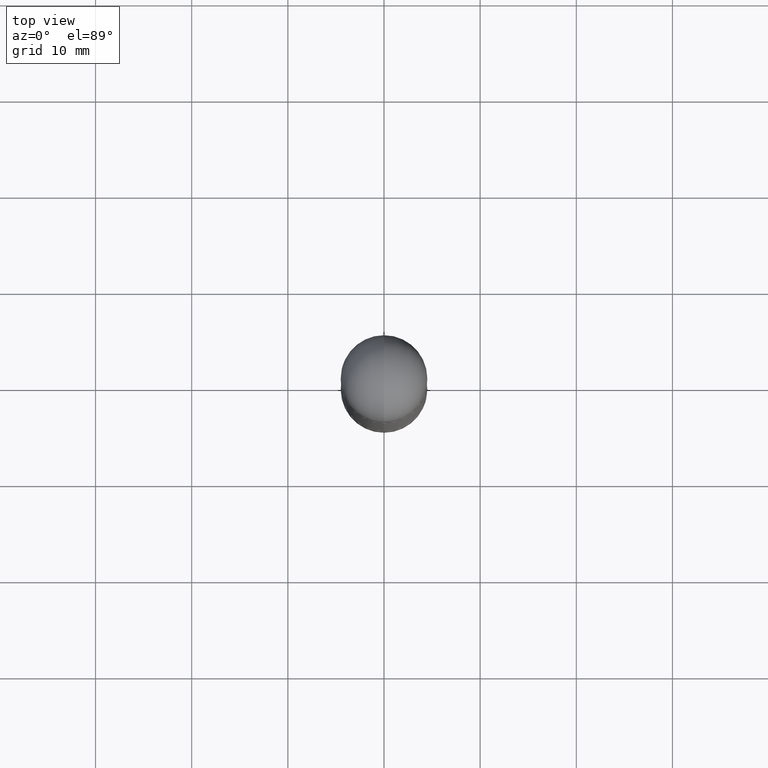
[diagram: clean part render]
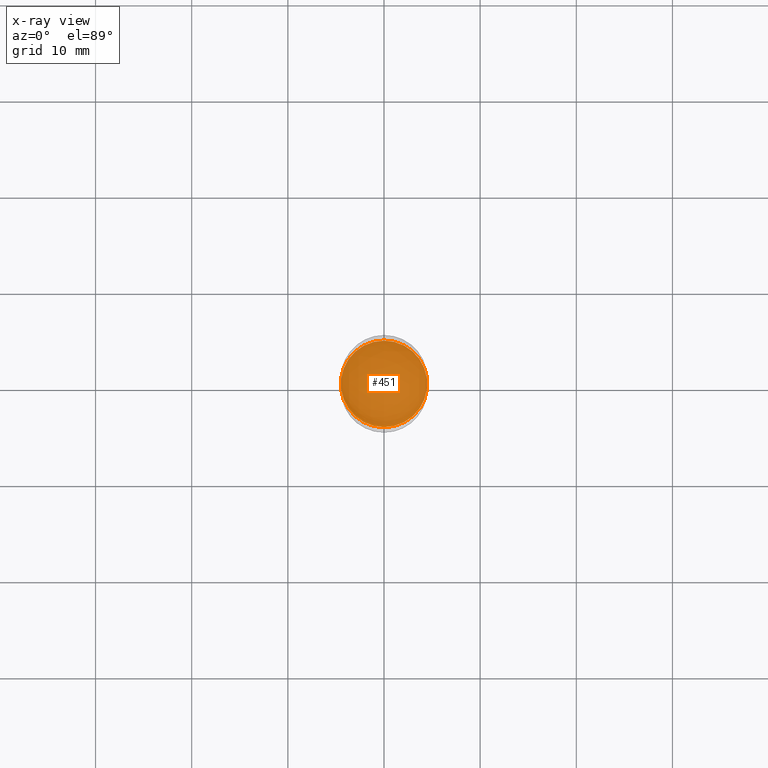
[diagram: x-ray — body ghosted, one internal face saturated and labeled with its STEP entity id]
A machine part, top view, then the same camera in x-ray: the body is ghosted and one INTERNAL B-rep face — a face not visible from any outside direction — is saturated and labeled: STEP entity #451.
In plain terms, the highlighted planar face has unit normal (0, 0, 1).
Its self-contained STEP definition (entity closure, byte-faithful):
#2 = VERTEX_POINT ( 'NONE', #693 ) ;
#8 = DIRECTION ( 'NONE',  ( -1.000000000000000000, 0.000000000000000000, 0.000000000000000000 ) ) ;
#37 = AXIS2_PLACEMENT_3D ( 'NONE', #570, #444, #565 ) ;
#46 = EDGE_CURVE ( 'NONE', #2, #151, #169, .T. ) ;
#81 = CARTESIAN_POINT ( 'NONE',  ( 1.215337220305286460E-15, 0.1771499999999950337, -1.476399999999999935 ) ) ;
#151 = VERTEX_POINT ( 'NONE', #81 ) ;
#154 = DIRECTION ( 'NONE',  ( 0.000000000000000000, 0.000000000000000000, 1.000000000000000000 ) ) ;
#169 = CIRCLE ( 'NONE', #37, 0.1771500000000001962 ) ;
#257 = AXIS2_PLACEMENT_3D ( 'NONE', #758, #154, #8 ) ;
#258 = CIRCLE ( 'NONE', #309, 0.1771500000000001962 ) ;
#299 = ORIENTED_EDGE ( 'NONE', *, *, #688, .T. ) ;
#309 = AXIS2_PLACEMENT_3D ( 'NONE', #523, #765, #704 ) ;
#444 = DIRECTION ( 'NONE',  ( -0.000000000000000000, -0.000000000000000000, -1.000000000000000000 ) ) ;
#451 = ADVANCED_FACE ( 'NONE', ( #618 ), #561, .F. ) ;
#523 = CARTESIAN_POINT ( 'NONE',  ( 3.609913649437242172E-29, -5.155648623772889312E-15, -1.476399999999999935 ) ) ;
#561 = PLANE ( 'NONE',  #257 ) ;
#565 = DIRECTION ( 'NONE',  ( -1.000000000000000000, 0.000000000000000000, 0.000000000000000000 ) ) ;
#570 = CARTESIAN_POINT ( 'NONE',  ( 3.609913649437242172E-29, -5.155648623772889312E-15, -1.476399999999999935 ) ) ;
#591 = ORIENTED_EDGE ( 'NONE', *, *, #46, .T. ) ;
#618 = FACE_OUTER_BOUND ( 'NONE', #670, .T. ) ;
#670 = EDGE_LOOP ( 'NONE', ( #591, #299 ) ) ;
#688 = EDGE_CURVE ( 'NONE', #151, #2, #258, .T. ) ;
#693 = CARTESIAN_POINT ( 'NONE',  ( -1.237031838352075654E-15, -0.1771500000000053310, -1.476399999999999935 ) ) ;
#704 = DIRECTION ( 'NONE',  ( -1.000000000000000000, 0.000000000000000000, 0.000000000000000000 ) ) ;
#758 = CARTESIAN_POINT ( 'NONE',  ( 0.000000000000000000, 0.000000000000000000, -1.476399999999999935 ) ) ;
#765 = DIRECTION ( 'NONE',  ( -0.000000000000000000, -0.000000000000000000, -1.000000000000000000 ) ) ;